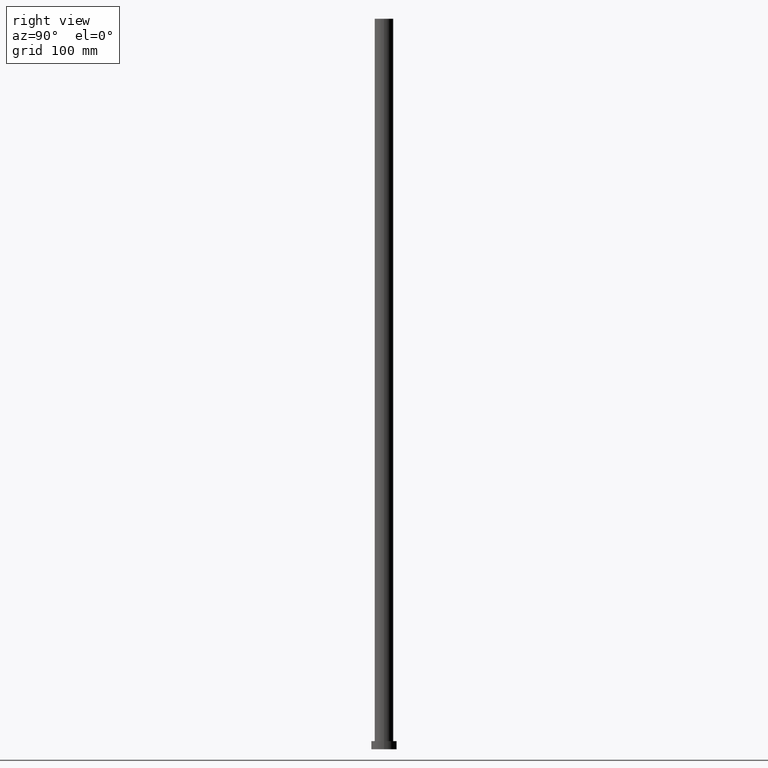
[diagram: clean part render]
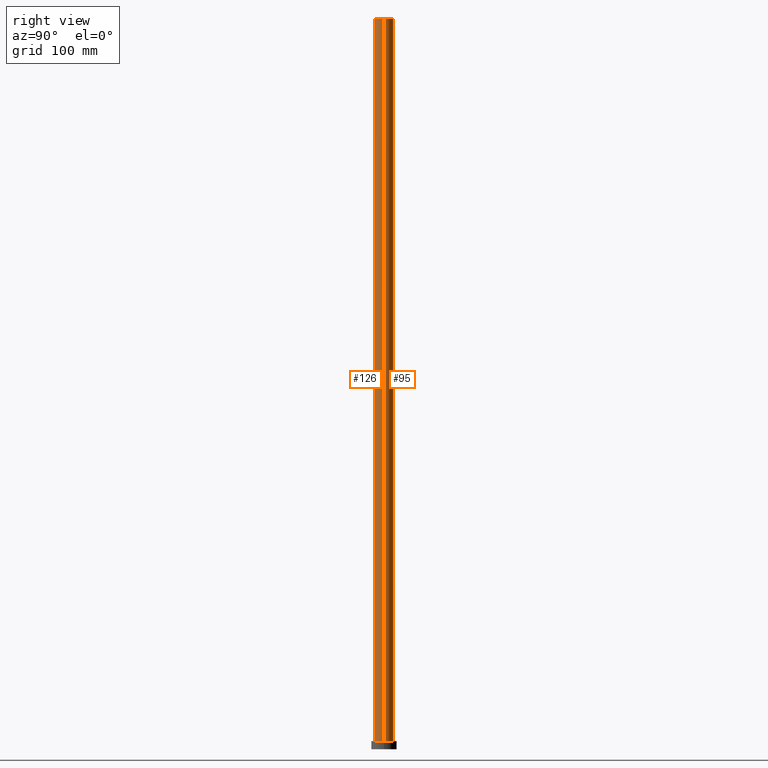
[diagram: same view with one multi-face feature highlighted, each face labeled with its STEP entity id]
A machine part, right view. The highlighted faces form ONE feature: a constant-radius fillet chain: 2 tangent blend faces with common blend radius 8 mm. The faces share edges in the B-rep.
Their STEP definitions:
[1] entity #126 (Cylinder):
#6 = CIRCLE ( 'NONE', #54, 8.000000000000000000 ) ;
#28 = VECTOR ( 'NONE', #29, 1000.000000000000000 ) ;
#29 = DIRECTION ( 'NONE',  ( -0.000000000000000000, -0.000000000000000000, -1.000000000000000000 ) ) ;
#36 = EDGE_CURVE ( 'NONE', #238, #170, #245, .T. ) ;
#38 = ORIENTED_EDGE ( 'NONE', *, *, #219, .T. ) ;
#42 = EDGE_CURVE ( 'NONE', #85, #182, #71, .T. ) ;
#48 = CARTESIAN_POINT ( 'NONE',  ( 0.000000000000000000, 0.000000000000000000, 630.0000000000000000 ) ) ;
#51 = CARTESIAN_POINT ( 'NONE',  ( 8.000000000000000000, 9.797174393178825657E-16, 7.000000000000000000 ) ) ;
#54 = AXIS2_PLACEMENT_3D ( 'NONE', #193, #75, #178 ) ;
#69 = ORIENTED_EDGE ( 'NONE', *, *, #42, .F. ) ;
#71 = LINE ( 'NONE', #153, #28 ) ;
#75 = DIRECTION ( 'NONE',  ( 0.000000000000000000, 0.000000000000000000, 1.000000000000000000 ) ) ;
#81 = EDGE_LOOP ( 'NONE', ( #69, #220, #145, #38 ) ) ;
#85 = VERTEX_POINT ( 'NONE', #150 ) ;
#88 = DIRECTION ( 'NONE',  ( -0.000000000000000000, -0.000000000000000000, -1.000000000000000000 ) ) ;
#89 = CARTESIAN_POINT ( 'NONE',  ( -8.000000000000000000, 0.000000000000000000, 7.000000000000000000 ) ) ;
#91 = CYLINDRICAL_SURFACE ( 'NONE', #222, 8.000000000000000000 ) ;
#93 = VECTOR ( 'NONE', #183, 1000.000000000000000 ) ;
#118 = CIRCLE ( 'NONE', #146, 8.000000000000000000 ) ;
#126 = ADVANCED_FACE ( 'NONE', ( #174 ), #91, .T. ) ;
#131 = EDGE_CURVE ( 'NONE', #238, #85, #118, .T. ) ;
#132 = CARTESIAN_POINT ( 'NONE',  ( -8.000000000000000000, 0.000000000000000000, 630.0000000000000000 ) ) ;
#139 = CARTESIAN_POINT ( 'NONE',  ( -8.000000000000000000, 0.000000000000000000, 630.0000000000000000 ) ) ;
#145 = ORIENTED_EDGE ( 'NONE', *, *, #36, .T. ) ;
#146 = AXIS2_PLACEMENT_3D ( 'NONE', #48, #188, #225 ) ;
#150 = CARTESIAN_POINT ( 'NONE',  ( 8.000000000000000000, 9.797174393178825657E-16, 630.0000000000000000 ) ) ;
#152 = CARTESIAN_POINT ( 'NONE',  ( 0.000000000000000000, 0.000000000000000000, 630.0000000000000000 ) ) ;
#153 = CARTESIAN_POINT ( 'NONE',  ( 8.000000000000000000, 9.797174393178825657E-16, 630.0000000000000000 ) ) ;
#168 = DIRECTION ( 'NONE',  ( -1.000000000000000000, 0.000000000000000000, 0.000000000000000000 ) ) ;
#170 = VERTEX_POINT ( 'NONE', #89 ) ;
#174 = FACE_OUTER_BOUND ( 'NONE', #81, .T. ) ;
#178 = DIRECTION ( 'NONE',  ( 1.000000000000000000, 0.000000000000000000, 0.000000000000000000 ) ) ;
#182 = VERTEX_POINT ( 'NONE', #51 ) ;
#183 = DIRECTION ( 'NONE',  ( -0.000000000000000000, -0.000000000000000000, -1.000000000000000000 ) ) ;
#188 = DIRECTION ( 'NONE',  ( 0.000000000000000000, 0.000000000000000000, 1.000000000000000000 ) ) ;
#193 = CARTESIAN_POINT ( 'NONE',  ( 0.000000000000000000, 0.000000000000000000, 7.000000000000000000 ) ) ;
#219 = EDGE_CURVE ( 'NONE', #170, #182, #6, .T. ) ;
#220 = ORIENTED_EDGE ( 'NONE', *, *, #131, .F. ) ;
#222 = AXIS2_PLACEMENT_3D ( 'NONE', #152, #88, #168 ) ;
#225 = DIRECTION ( 'NONE',  ( 1.000000000000000000, 0.000000000000000000, 0.000000000000000000 ) ) ;
#238 = VERTEX_POINT ( 'NONE', #139 ) ;
#245 = LINE ( 'NONE', #132, #93 ) ;
[2] entity #95 (Cylinder):
#10 = CYLINDRICAL_SURFACE ( 'NONE', #98, 8.000000000000000000 ) ;
#13 = CARTESIAN_POINT ( 'NONE',  ( 0.000000000000000000, 0.000000000000000000, 7.000000000000000000 ) ) ;
#20 = DIRECTION ( 'NONE',  ( 0.000000000000000000, 0.000000000000000000, 1.000000000000000000 ) ) ;
#27 = DIRECTION ( 'NONE',  ( -1.000000000000000000, 0.000000000000000000, 0.000000000000000000 ) ) ;
#28 = VECTOR ( 'NONE', #29, 1000.000000000000000 ) ;
#29 = DIRECTION ( 'NONE',  ( -0.000000000000000000, -0.000000000000000000, -1.000000000000000000 ) ) ;
#33 = DIRECTION ( 'NONE',  ( 1.000000000000000000, 0.000000000000000000, 0.000000000000000000 ) ) ;
#36 = EDGE_CURVE ( 'NONE', #238, #170, #245, .T. ) ;
#42 = EDGE_CURVE ( 'NONE', #85, #182, #71, .T. ) ;
#50 = DIRECTION ( 'NONE',  ( 0.000000000000000000, 0.000000000000000000, 1.000000000000000000 ) ) ;
#51 = CARTESIAN_POINT ( 'NONE',  ( 8.000000000000000000, 9.797174393178825657E-16, 7.000000000000000000 ) ) ;
#55 = ORIENTED_EDGE ( 'NONE', *, *, #36, .F. ) ;
#57 = EDGE_CURVE ( 'NONE', #182, #170, #124, .T. ) ;
#71 = LINE ( 'NONE', #153, #28 ) ;
#82 = AXIS2_PLACEMENT_3D ( 'NONE', #13, #50, #90 ) ;
#85 = VERTEX_POINT ( 'NONE', #150 ) ;
#86 = AXIS2_PLACEMENT_3D ( 'NONE', #120, #20, #33 ) ;
#89 = CARTESIAN_POINT ( 'NONE',  ( -8.000000000000000000, 0.000000000000000000, 7.000000000000000000 ) ) ;
#90 = DIRECTION ( 'NONE',  ( 1.000000000000000000, 0.000000000000000000, 0.000000000000000000 ) ) ;
#93 = VECTOR ( 'NONE', #183, 1000.000000000000000 ) ;
#95 = ADVANCED_FACE ( 'NONE', ( #172 ), #10, .T. ) ;
#98 = AXIS2_PLACEMENT_3D ( 'NONE', #250, #155, #27 ) ;
#108 = CIRCLE ( 'NONE', #86, 8.000000000000000000 ) ;
#120 = CARTESIAN_POINT ( 'NONE',  ( 0.000000000000000000, 0.000000000000000000, 630.0000000000000000 ) ) ;
#124 = CIRCLE ( 'NONE', #82, 8.000000000000000000 ) ;
#127 = ORIENTED_EDGE ( 'NONE', *, *, #57, .T. ) ;
#132 = CARTESIAN_POINT ( 'NONE',  ( -8.000000000000000000, 0.000000000000000000, 630.0000000000000000 ) ) ;
#136 = ORIENTED_EDGE ( 'NONE', *, *, #228, .F. ) ;
#139 = CARTESIAN_POINT ( 'NONE',  ( -8.000000000000000000, 0.000000000000000000, 630.0000000000000000 ) ) ;
#144 = ORIENTED_EDGE ( 'NONE', *, *, #42, .T. ) ;
#150 = CARTESIAN_POINT ( 'NONE',  ( 8.000000000000000000, 9.797174393178825657E-16, 630.0000000000000000 ) ) ;
#153 = CARTESIAN_POINT ( 'NONE',  ( 8.000000000000000000, 9.797174393178825657E-16, 630.0000000000000000 ) ) ;
#155 = DIRECTION ( 'NONE',  ( -0.000000000000000000, -0.000000000000000000, -1.000000000000000000 ) ) ;
#165 = EDGE_LOOP ( 'NONE', ( #136, #144, #127, #55 ) ) ;
#170 = VERTEX_POINT ( 'NONE', #89 ) ;
#172 = FACE_OUTER_BOUND ( 'NONE', #165, .T. ) ;
#182 = VERTEX_POINT ( 'NONE', #51 ) ;
#183 = DIRECTION ( 'NONE',  ( -0.000000000000000000, -0.000000000000000000, -1.000000000000000000 ) ) ;
#228 = EDGE_CURVE ( 'NONE', #85, #238, #108, .T. ) ;
#238 = VERTEX_POINT ( 'NONE', #139 ) ;
#245 = LINE ( 'NONE', #132, #93 ) ;
#250 = CARTESIAN_POINT ( 'NONE',  ( 0.000000000000000000, 0.000000000000000000, 630.0000000000000000 ) ) ;